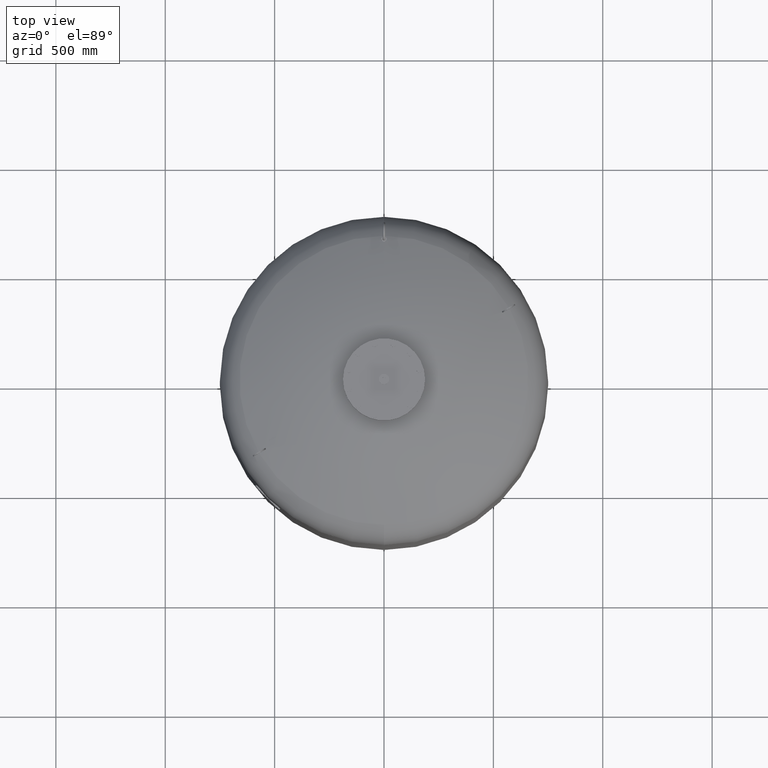
[diagram: clean part render]
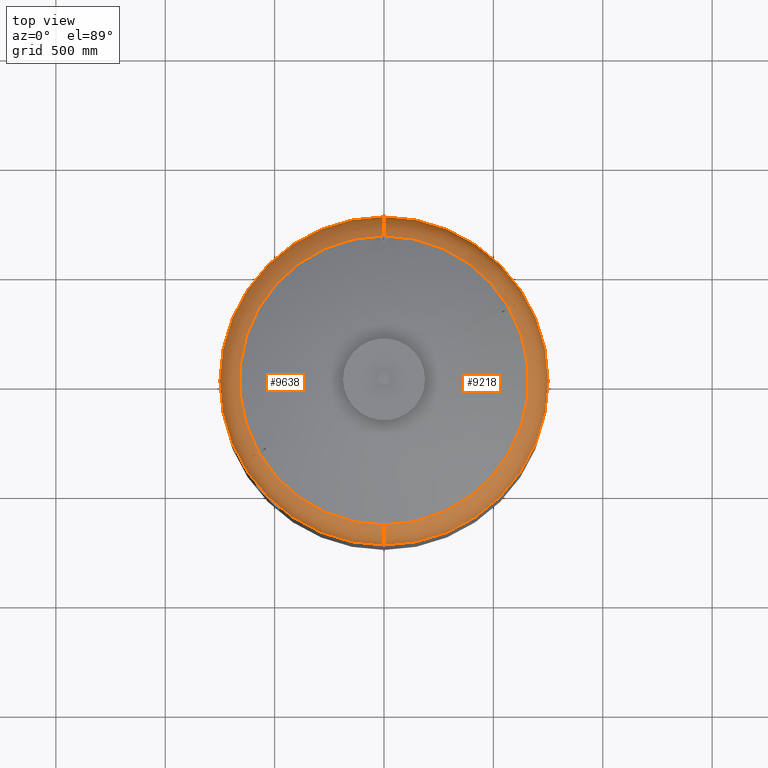
[diagram: same view with one multi-face feature highlighted, each face labeled with its STEP entity id]
A machine part, top view. The highlighted faces form ONE feature: a constant-radius fillet chain: 2 tangent blend faces with common blend radius 159 mm. The faces share edges in the B-rep.
Their STEP definitions:
[1] entity #9218 (Torus):
#9018=CARTESIAN_POINT('',(750.0,-5.423428E-014,2104.762332584101800));
#9019=VERTEX_POINT('',#9018);
#9043=CARTESIAN_POINT('',(1.267436E-013,750.0,2104.762332584101800));
#9044=VERTEX_POINT('',#9043);
#9052=CARTESIAN_POINT('',(1.459986E-014,-5.423428E-014,2104.762332584101800));
#9053=DIRECTION('',(0.0,0.0,-1.0));
#9054=DIRECTION('',(1.0,0.0,0.0));
#9055=AXIS2_PLACEMENT_3D('',#9052,#9053,#9054);
#9056=CIRCLE('',#9055,750.0);
#9057=EDGE_CURVE('',#9044,#9019,#9056,.T.);
#9125=CARTESIAN_POINT('',(3.489809E-014,-5.423428E-014,2104.762332584101800));
#9126=DIRECTION('',(4.945121E-017,-1.836970E-016,-1.0));
#9127=DIRECTION('',(0.0,-1.0,0.0));
#9128=AXIS2_PLACEMENT_3D('',#9125,#9126,#9127);
#9129=TOROIDAL_SURFACE('',#9128,591.0,159.0);
#9130=CARTESIAN_POINT('',(3.489809E-014,-750.0,2104.762332584101800));
#9131=VERTEX_POINT('',#9130);
#9132=CARTESIAN_POINT('',(2.782883E-014,-660.606666666666800,2247.716562866229200));
#9133=VERTEX_POINT('',#9132);
#9134=CARTESIAN_POINT('',(3.489809E-014,-591.0,2104.762332584101800));
#9135=DIRECTION('',(-1.0,0.0,0.0));
#9136=DIRECTION('',(0.0,-1.0,0.0));
#9137=AXIS2_PLACEMENT_3D('',#9134,#9135,#9136);
#9138=CIRCLE('',#9137,159.0);
#9139=EDGE_CURVE('',#9131,#9133,#9138,.T.);
#9140=ORIENTED_EDGE('',*,*,#9139,.F.);
#9141=CARTESIAN_POINT('',(1.459986E-014,-5.423428E-014,2104.762332584101800));
#9142=DIRECTION('',(0.0,0.0,-1.0));
#9143=DIRECTION('',(1.0,0.0,0.0));
#9144=AXIS2_PLACEMENT_3D('',#9141,#9142,#9143);
#9145=CIRCLE('',#9144,750.0);
#9146=EDGE_CURVE('',#9019,#9131,#9145,.T.);
#9147=ORIENTED_EDGE('',*,*,#9146,.F.);
#9148=ORIENTED_EDGE('',*,*,#9057,.F.);
#9149=CARTESIAN_POINT('',(1.087271E-013,660.606666666666800,2247.716562866229200));
#9150=VERTEX_POINT('',#9149);
#9151=CARTESIAN_POINT('',(1.072723E-013,591.0,2104.762332584101800));
#9152=DIRECTION('',(1.0,0.0,0.0));
#9153=DIRECTION('',(0.0,1.0,0.0));
#9154=AXIS2_PLACEMENT_3D('',#9151,#9152,#9153);
#9155=CIRCLE('',#9154,159.0);
#9156=EDGE_CURVE('',#9044,#9150,#9155,.T.);
#9157=ORIENTED_EDGE('',*,*,#9156,.T.);
#9158=CARTESIAN_POINT('',(570.596255916202270,332.898003566943030,2247.716562866229200));
#9159=VERTEX_POINT('',#9158);
#9160=CARTESIAN_POINT('',(7.530601E-015,-2.797401E-014,2247.716562866229200));
#9161=DIRECTION('',(0.0,0.0,-1.0));
#9162=DIRECTION('',(1.0,0.0,0.0));
#9163=AXIS2_PLACEMENT_3D('',#9160,#9161,#9162);
#9164=CIRCLE('',#9163,660.606666666666800);
#9165=EDGE_CURVE('',#9150,#9159,#9164,.T.);
#9166=ORIENTED_EDGE('',*,*,#9165,.T.);
#9167=CARTESIAN_POINT('',(588.588482349337030,343.285820341434260,2235.575471650438900));
#9168=VERTEX_POINT('',#9167);
#9169=CARTESIAN_POINT('',(570.596255916202270,332.898003566943030,2247.716562866229200));
#9170=CARTESIAN_POINT('',(572.054041405254220,333.739656411467930,2246.896943261032400));
#9171=CARTESIAN_POINT('',(573.514867502697370,334.583064752065810,2246.038760350182700));
#9172=CARTESIAN_POINT('',(576.976511612975400,336.581645910973690,2243.912932457119000));
#9173=CARTESIAN_POINT('',(578.974781685762880,337.735347675411160,2242.612126014599200));
#9174=CARTESIAN_POINT('',(582.931774475123920,340.019918527530190,2239.881544856047600));
#9175=CARTESIAN_POINT('',(584.890496100696050,341.150786985321820,2238.451768031998700));
#9176=CARTESIAN_POINT('',(587.410277309621960,342.605583344594150,2236.507652363015000));
#9177=CARTESIAN_POINT('',(588.001091399301120,342.946690018311470,2236.044094471851200));
#9178=CARTESIAN_POINT('',(588.588482349337030,343.285820341434260,2235.575471650438900));
#9179=B_SPLINE_CURVE_WITH_KNOTS('',3,(#9169,#9170,#9171,#9172,#9173,#9174,#9175,#9176,#9177,#9178),.UNSPECIFIED.,.F.,.U.,(4,2,2,2,4),(774.656358350488740,780.010685689572260,787.369273058092740,794.727860426613230,796.996990205935960),.UNSPECIFIED.);
#9180=EDGE_CURVE('',#9159,#9168,#9179,.T.);
#9181=ORIENTED_EDGE('',*,*,#9180,.T.);
#9182=CARTESIAN_POINT('',(591.588482349336690,338.089667918727570,2235.575471650438900));
#9183=VERTEX_POINT('',#9182);
#9184=CARTESIAN_POINT('',(588.588482349337030,343.285820341434260,2235.575471650438900));
#9185=CARTESIAN_POINT('',(589.090111222559810,342.418391231101340,2235.578030124753200));
#9186=CARTESIAN_POINT('',(589.590425441357980,341.552525995023070,2235.579301453786200));
#9187=CARTESIAN_POINT('',(590.089401200233620,340.688274628905390,2235.579301453786200));
#9188=CARTESIAN_POINT('',(590.588376959112570,339.824023262781680,2235.579301453786200));
#9189=CARTESIAN_POINT('',(591.088081140414260,338.957805821382750,2235.578030124753200));
#9190=CARTESIAN_POINT('',(591.588482349336690,338.089667918727570,2235.575471650438900));
#9191=B_SPLINE_CURVE_WITH_KNOTS('',3,(#9184,#9185,#9186,#9187,#9188,#9189,#9190),.UNSPECIFIED.,.F.,.U.,(4,3,4),(-2.993854553253430,0.0,2.993854553273963),.UNSPECIFIED.);
#9192=EDGE_CURVE('',#9168,#9183,#9191,.T.);
#9193=ORIENTED_EDGE('',*,*,#9192,.T.);
#9194=CARTESIAN_POINT('',(573.596255916202270,327.701851144236400,2247.716562866229200));
#9195=VERTEX_POINT('',#9194);
#9196=CARTESIAN_POINT('',(591.588482349336690,338.089667918727570,2235.575471650438900));
#9197=CARTESIAN_POINT('',(591.001034993602270,337.750505029759610,2236.044139472540300));
#9198=CARTESIAN_POINT('',(590.410163811151510,337.409365393515030,2236.507741414689900));
#9199=CARTESIAN_POINT('',(587.890327860486420,335.954537429084780,2238.451893026950100));
#9200=CARTESIAN_POINT('',(585.931609407500670,334.823670802986780,2239.881663004374300));
#9201=CARTESIAN_POINT('',(581.974623379374860,332.539103854468750,2242.612231014925300));
#9202=CARTESIAN_POINT('',(579.976356895234860,331.385404161938030,2243.913031156073000));
#9203=CARTESIAN_POINT('',(576.514766784393940,329.386854179619720,2246.038819520509200));
#9204=CARTESIAN_POINT('',(575.053991207979040,328.543475007350930,2246.896971483751700));
#9205=CARTESIAN_POINT('',(573.596255916202270,327.701851144236400,2247.716562866229200));
#9206=B_SPLINE_CURVE_WITH_KNOTS('',3,(#9196,#9197,#9198,#9199,#9200,#9201,#9202,#9203,#9204,#9205),.UNSPECIFIED.,.F.,.U.,(4,2,2,2,4),(144.901644365231360,147.170992146182750,154.529560626149700,161.888129106116650,167.242268222433860),.UNSPECIFIED.);
#9207=EDGE_CURVE('',#9183,#9195,#9206,.T.);
#9208=ORIENTED_EDGE('',*,*,#9207,.T.);
#9209=CARTESIAN_POINT('',(7.530601E-015,-2.797401E-014,2247.716562866229200));
#9210=DIRECTION('',(0.0,0.0,-1.0));
#9211=DIRECTION('',(1.0,0.0,0.0));
#9212=AXIS2_PLACEMENT_3D('',#9209,#9210,#9211);
#9213=CIRCLE('',#9212,660.606666666666800);
#9214=EDGE_CURVE('',#9195,#9133,#9213,.T.);
#9215=ORIENTED_EDGE('',*,*,#9214,.T.);
#9216=EDGE_LOOP('',(#9140,#9147,#9148,#9157,#9166,#9181,#9193,#9208,#9215));
#9217=FACE_OUTER_BOUND('',#9216,.T.);
#9218=ADVANCED_FACE('',(#9217),#9129,.T.);
[2] entity #9638 (Torus):
#9035=CARTESIAN_POINT('',(-750.0,3.761120E-014,2104.762332584101800));
#9036=VERTEX_POINT('',#9035);
#9043=CARTESIAN_POINT('',(1.267436E-013,750.0,2104.762332584101800));
#9044=VERTEX_POINT('',#9043);
#9045=CARTESIAN_POINT('',(1.459986E-014,-5.423428E-014,2104.762332584101800));
#9046=DIRECTION('',(0.0,0.0,-1.0));
#9047=DIRECTION('',(1.0,0.0,0.0));
#9048=AXIS2_PLACEMENT_3D('',#9045,#9046,#9047);
#9049=CIRCLE('',#9048,750.0);
#9050=EDGE_CURVE('',#9036,#9044,#9049,.T.);
#9130=CARTESIAN_POINT('',(3.489809E-014,-750.0,2104.762332584101800));
#9131=VERTEX_POINT('',#9130);
#9132=CARTESIAN_POINT('',(2.782883E-014,-660.606666666666800,2247.716562866229200));
#9133=VERTEX_POINT('',#9132);
#9134=CARTESIAN_POINT('',(3.489809E-014,-591.0,2104.762332584101800));
#9135=DIRECTION('',(-1.0,0.0,0.0));
#9136=DIRECTION('',(0.0,-1.0,0.0));
#9137=AXIS2_PLACEMENT_3D('',#9134,#9135,#9136);
#9138=CIRCLE('',#9137,159.0);
#9139=EDGE_CURVE('',#9131,#9133,#9138,.T.);
#9149=CARTESIAN_POINT('',(1.087271E-013,660.606666666666800,2247.716562866229200));
#9150=VERTEX_POINT('',#9149);
#9151=CARTESIAN_POINT('',(1.072723E-013,591.0,2104.762332584101800));
#9152=DIRECTION('',(1.0,0.0,0.0));
#9153=DIRECTION('',(0.0,1.0,0.0));
#9154=AXIS2_PLACEMENT_3D('',#9151,#9152,#9153);
#9155=CIRCLE('',#9154,159.0);
#9156=EDGE_CURVE('',#9044,#9150,#9155,.T.);
#9402=CARTESIAN_POINT('',(-570.596255916196580,-332.898003566952920,2247.716562866229700));
#9403=VERTEX_POINT('',#9402);
#9404=CARTESIAN_POINT('',(-588.588482349331340,-343.285820341443810,2235.575471650438900));
#9405=VERTEX_POINT('',#9404);
#9406=CARTESIAN_POINT('',(-570.596255916196580,-332.898003566952920,2247.716562866229700));
#9407=CARTESIAN_POINT('',(-572.053991207973350,-333.739627430067460,2246.896971483751700));
#9408=CARTESIAN_POINT('',(-573.514766784388030,-334.583006602336130,2246.038819520509200));
#9409=CARTESIAN_POINT('',(-576.976356895228950,-336.581556584654270,2243.913031156073000));
#9410=CARTESIAN_POINT('',(-578.974623379368950,-337.735256277185040,2242.612231014925300));
#9411=CARTESIAN_POINT('',(-582.931609407494880,-340.019823225703130,2239.881663004374300));
#9412=CARTESIAN_POINT('',(-584.890327860480620,-341.150689851801190,2238.451893026950500));
#9413=CARTESIAN_POINT('',(-587.410163811145820,-342.605517816231330,2236.507741414689900));
#9414=CARTESIAN_POINT('',(-588.001034993596930,-342.946657452475790,2236.044139472540300));
#9415=CARTESIAN_POINT('',(-588.588482349331340,-343.285820341443810,2235.575471650438900));
#9416=B_SPLINE_CURVE_WITH_KNOTS('',3,(#9406,#9407,#9408,#9409,#9410,#9411,#9412,#9413,#9414,#9415),.UNSPECIFIED.,.F.,.U.,(4,2,2,2,4),(774.656357685334110,780.010496801651020,787.369065281617960,794.727633761584910,796.996981542536560),.UNSPECIFIED.);
#9417=EDGE_CURVE('',#9403,#9405,#9416,.T.);
#9519=CARTESIAN_POINT('',(-591.588482349331340,-338.089667918737230,2235.575471650438900));
#9520=VERTEX_POINT('',#9519);
#9521=CARTESIAN_POINT('',(-588.588482349331340,-343.285820341443810,2235.575471650438900));
#9522=CARTESIAN_POINT('',(-589.090111222557650,-342.418391231104920,2235.578030124753200));
#9523=CARTESIAN_POINT('',(-589.590425441359340,-341.552525995020690,2235.579301453786200));
#9524=CARTESIAN_POINT('',(-590.089401200238290,-340.688274628897030,2235.579301453786200));
#9525=CARTESIAN_POINT('',(-590.588376959113930,-339.824023262779290,2235.579301453786200));
#9526=CARTESIAN_POINT('',(-591.088081140412330,-338.957805821386390,2235.578030124753200));
#9527=CARTESIAN_POINT('',(-591.588482349331340,-338.089667918737230,2235.575471650438900));
#9528=B_SPLINE_CURVE_WITH_KNOTS('',3,(#9521,#9522,#9523,#9524,#9525,#9526,#9527),.UNSPECIFIED.,.F.,.U.,(4,3,4),(-2.993854553274037,0.0,2.993854553253479),.UNSPECIFIED.);
#9529=EDGE_CURVE('',#9405,#9520,#9528,.T.);
#9554=CARTESIAN_POINT('',(-573.596255916196580,-327.701851144246290,2247.716562866229700));
#9555=VERTEX_POINT('',#9554);
#9556=CARTESIAN_POINT('',(-591.588482349331340,-338.089667918737230,2235.575471650438900));
#9557=CARTESIAN_POINT('',(-591.001091399295430,-337.750537595614450,2236.044094471851200));
#9558=CARTESIAN_POINT('',(-590.410277309616280,-337.409430921897070,2236.507652363015000));
#9559=CARTESIAN_POINT('',(-587.890496100690370,-335.954634562624850,2238.451768031998700));
#9560=CARTESIAN_POINT('',(-585.931774475118230,-334.823766104833230,2239.881544856047600));
#9561=CARTESIAN_POINT('',(-581.974781685757190,-332.539195252714250,2242.612126014599200));
#9562=CARTESIAN_POINT('',(-579.976511612969600,-331.385493488276780,2243.912932457119000));
#9563=CARTESIAN_POINT('',(-576.514867502691460,-329.386912329369070,2246.038760350182700));
#9564=CARTESIAN_POINT('',(-575.054041405248540,-328.543503988771140,2246.896943261032400));
#9565=CARTESIAN_POINT('',(-573.596255916196580,-327.701851144246290,2247.716562866229700));
#9566=B_SPLINE_CURVE_WITH_KNOTS('',3,(#9556,#9557,#9558,#9559,#9560,#9561,#9562,#9563,#9564,#9565),.UNSPECIFIED.,.F.,.U.,(4,2,2,2,4),(144.901635701804910,147.170765481127490,154.529352849647950,161.887940218168410,167.242267557251490),.UNSPECIFIED.);
#9567=EDGE_CURVE('',#9520,#9555,#9566,.T.);
#9604=CARTESIAN_POINT('',(3.489809E-014,-5.423428E-014,2104.762332584101800));
#9605=DIRECTION('',(4.945121E-017,-1.836970E-016,-1.0));
#9606=DIRECTION('',(0.0,-1.0,0.0));
#9607=AXIS2_PLACEMENT_3D('',#9604,#9605,#9606);
#9608=TOROIDAL_SURFACE('',#9607,591.0,159.0);
#9609=ORIENTED_EDGE('',*,*,#9139,.T.);
#9610=CARTESIAN_POINT('',(7.530601E-015,-2.797401E-014,2247.716562866229200));
#9611=DIRECTION('',(0.0,0.0,-1.0));
#9612=DIRECTION('',(1.0,0.0,0.0));
#9613=AXIS2_PLACEMENT_3D('',#9610,#9611,#9612);
#9614=CIRCLE('',#9613,660.606666666666800);
#9615=EDGE_CURVE('',#9133,#9403,#9614,.T.);
#9616=ORIENTED_EDGE('',*,*,#9615,.T.);
#9617=ORIENTED_EDGE('',*,*,#9417,.T.);
#9618=ORIENTED_EDGE('',*,*,#9529,.T.);
#9619=ORIENTED_EDGE('',*,*,#9567,.T.);
#9620=CARTESIAN_POINT('',(7.530601E-015,-2.797401E-014,2247.716562866229200));
#9621=DIRECTION('',(0.0,0.0,-1.0));
#9622=DIRECTION('',(1.0,0.0,0.0));
#9623=AXIS2_PLACEMENT_3D('',#9620,#9621,#9622);
#9624=CIRCLE('',#9623,660.606666666666800);
#9625=EDGE_CURVE('',#9555,#9150,#9624,.T.);
#9626=ORIENTED_EDGE('',*,*,#9625,.T.);
#9627=ORIENTED_EDGE('',*,*,#9156,.F.);
#9628=ORIENTED_EDGE('',*,*,#9050,.F.);
#9629=CARTESIAN_POINT('',(1.459986E-014,-5.423428E-014,2104.762332584101800));
#9630=DIRECTION('',(0.0,0.0,-1.0));
#9631=DIRECTION('',(1.0,0.0,0.0));
#9632=AXIS2_PLACEMENT_3D('',#9629,#9630,#9631);
#9633=CIRCLE('',#9632,750.0);
#9634=EDGE_CURVE('',#9131,#9036,#9633,.T.);
#9635=ORIENTED_EDGE('',*,*,#9634,.F.);
#9636=EDGE_LOOP('',(#9609,#9616,#9617,#9618,#9619,#9626,#9627,#9628,#9635));
#9637=FACE_OUTER_BOUND('',#9636,.T.);
#9638=ADVANCED_FACE('',(#9637),#9608,.T.);